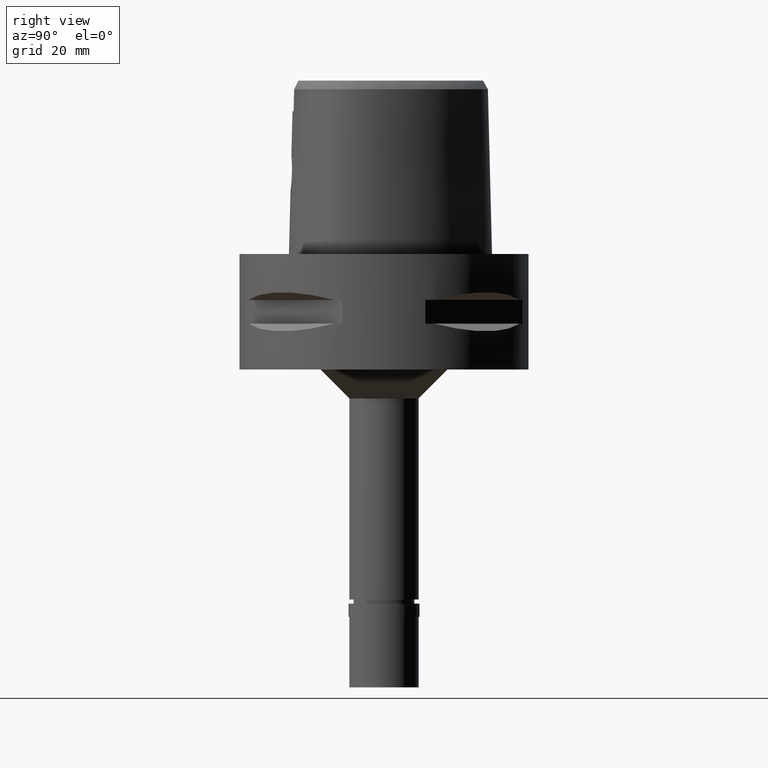
[diagram: clean part render]
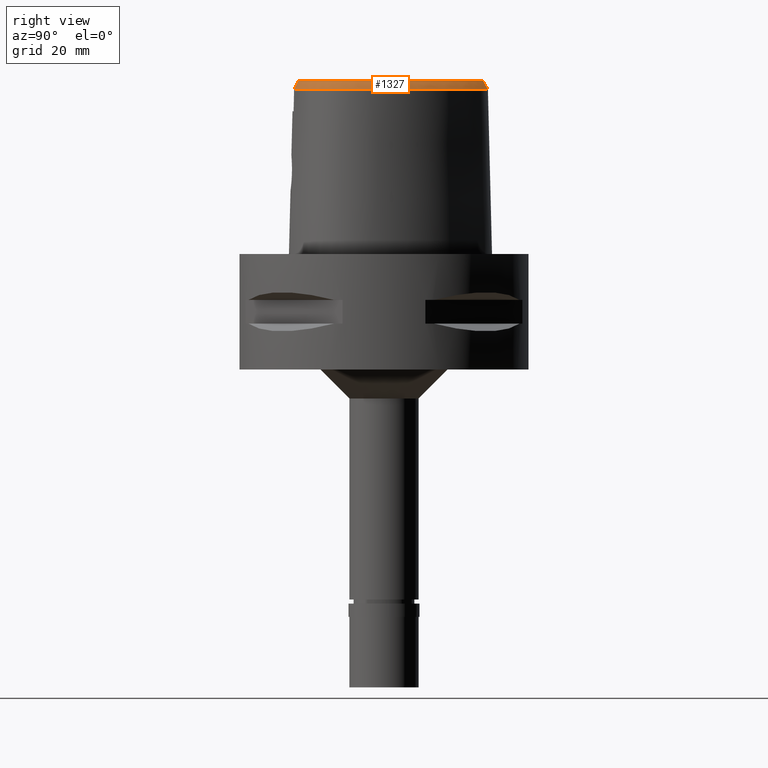
[diagram: same view with one face highlighted and labeled with its STEP entity id]
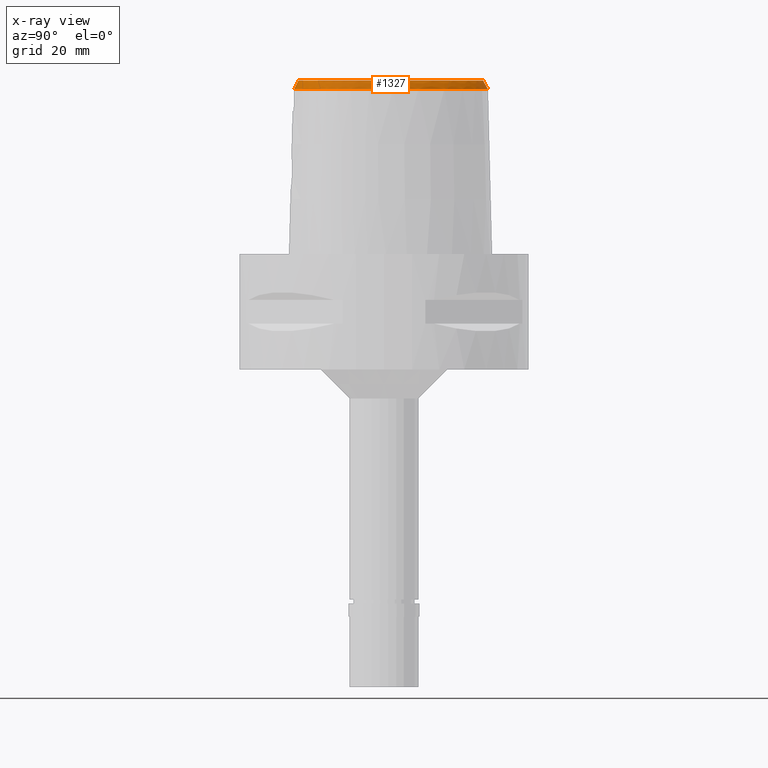
[diagram: x-ray of the same camera — body ghosted, the highlighted face saturated]
A machine part, right view. The second image highlights one B-rep face of the part: STEP entity #1327.
The next image is the same camera in x-ray: the body ghosted, the highlighted face saturated — about 0% of this face is hidden behind the body in this view.
In plain terms, the highlighted face is a freeform B-spline surface patch.
Its self-contained STEP definition (entity closure, byte-faithful):
#5 = CARTESIAN_POINT ( 'NONE',  ( 6.724797374536999328, -14.30101157136999923, 29.55000047030999966 ) ) ;
#13 = CARTESIAN_POINT ( 'NONE',  ( 14.53390620212999984, 5.620927143257999248, 28.97066037476000133 ) ) ;
#29 = CARTESIAN_POINT ( 'NONE',  ( 11.36765809995352505, -12.04801986072696707, 30.00000000000312639 ) ) ;
#36 = CARTESIAN_POINT ( 'NONE',  ( 16.37770331436999882, -3.537310348423000406, 29.54999944082999619 ) ) ;
#51 = CARTESIAN_POINT ( 'NONE',  ( 15.29323375805460117, -7.718923543002548016, 30.00000000000013856 ) ) ;
#53 = CARTESIAN_POINT ( 'NONE',  ( 4.199632981418999655, -14.84672476410000108, 29.54999921687999986 ) ) ;
#59 = CARTESIAN_POINT ( 'NONE',  ( 16.26461171300000075, 1.901595575491999979, 28.39132359343999923 ) ) ;
#72 = CARTESIAN_POINT ( 'NONE',  ( 9.420872132873729043, 12.20574557692420647, 30.00000000000720490 ) ) ;
#74 = CARTESIAN_POINT ( 'NONE',  ( 7.760784874898999597, -13.64550363543999900, 30.12933874967000136 ) ) ;
#82 = CARTESIAN_POINT ( 'NONE',  ( 14.82827226436999979, 5.757998883251000066, 28.39132109874000065 ) ) ;
#96 = CARTESIAN_POINT ( 'NONE',  ( 9.755668685252119943, -12.92551394023250921, 30.00000000000319744 ) ) ;
#107 = CARTESIAN_POINT ( 'NONE',  ( 13.31973456618999840, 6.602894440045999680, 30.12933897699000241 ) ) ;
#122 = CARTESIAN_POINT ( 'NONE',  ( 14.55828366953115705, 4.114142377745225509, 30.00000000000266454 ) ) ;
#125 = CARTESIAN_POINT ( 'NONE',  ( 16.47905536661118830, -6.962316254603424959, 28.52071728562179231 ) ) ;
#154 = CARTESIAN_POINT ( 'NONE',  ( 6.007749726799000101, 15.03327722248999976, 30.12933869948999899 ) ) ;
#178 = CARTESIAN_POINT ( 'NONE',  ( 1.241506488402000175, 17.64997603565999995, 28.97065956571999834 ) ) ;
#196 = CARTESIAN_POINT ( 'NONE',  ( 16.99625257117060784, -3.273868232427134206, 28.52071728562179231 ) ) ;
#202 = CARTESIAN_POINT ( 'NONE',  ( 1.892837094361999872, 17.53646441981000237, 28.97065995039000086 ) ) ;
#225 = CARTESIAN_POINT ( 'NONE',  ( 0.03835254134753000171, 17.08612171390999990, 30.12933898434999946 ) ) ;
#284 = CARTESIAN_POINT ( 'NONE',  ( 15.22665195903000068, -7.690191382263999564, 30.12933897638999881 ) ) ;
#306 = CARTESIAN_POINT ( 'NONE',  ( 14.02625041368999881, -9.658682705792001499, 30.12933896442000048 ) ) ;
#337 = CARTESIAN_POINT ( 'NONE',  ( 15.64143006704999905, -6.514574797256999616, 30.12933901372000278 ) ) ;
#350 = CARTESIAN_POINT ( 'NONE',  ( 2.674237079574083964, -15.00654560861780595, 29.59847386630686117 ) ) ;
#356 = CARTESIAN_POINT ( 'NONE',  ( 3.160207219436999893, -14.98522073072999916, 29.54999954832999975 ) ) ;
#361 = CARTESIAN_POINT ( 'NONE',  ( 16.01340400865999669, -4.368326340071999603, 30.12933892659999913 ) ) ;
#385 = CARTESIAN_POINT ( 'NONE',  ( 14.38851892047999925, -9.182527562120000653, 30.12933901626000122 ) ) ;
#399 = CARTESIAN_POINT ( 'NONE',  ( 2.538962679605123895, -14.79292722369513235, 30.00000000000949285 ) ) ;
#411 = CARTESIAN_POINT ( 'NONE',  ( 13.45870515836000081, 8.335003919024998709, 28.39132012102000147 ) ) ;
#427 = CARTESIAN_POINT ( 'NONE',  ( 15.68929135223632798, 0.4919393172820468174, 30.00000000000170175 ) ) ;
#429 = CARTESIAN_POINT ( 'NONE',  ( 2.403101206467000317, -15.05959379865000081, 29.54999962652000178 ) ) ;
#435 = CARTESIAN_POINT ( 'NONE',  ( 8.507108140543000019, 13.02166432272999863, 30.12933879929000014 ) ) ;
#449 = CARTESIAN_POINT ( 'NONE',  ( 15.51702143705464998, -7.148634146068665984, 30.00000000000195044 ) ) ;
#456 = CARTESIAN_POINT ( 'NONE',  ( 12.67396354151000004, 9.565731199256999773, 28.39132136682000151 ) ) ;
#467 = CARTESIAN_POINT ( 'NONE',  ( 14.01089202938309697, 5.377385268370920457, 30.00000000000238032 ) ) ;
#471 = CARTESIAN_POINT ( 'NONE',  ( 4.422474504765948389, 17.08283549833199899, 28.52071728562179231 ) ) ;
#476 = CARTESIAN_POINT ( 'NONE',  ( 16.47123648728999612, -0.5205807403898999874, 28.97066042555999843 ) ) ;
#492 = CARTESIAN_POINT ( 'NONE',  ( 10.27891984617708232, 11.24296481357245803, 30.00000000000057909 ) ) ;
#499 = CARTESIAN_POINT ( 'NONE',  ( 16.29145644433000228, -1.627790058883999968, 29.54999922132000023 ) ) ;
#525 = CARTESIAN_POINT ( 'NONE',  ( 2.393183334578000032, 16.74578086432000035, 30.12933902132000341 ) ) ;
#547 = CARTESIAN_POINT ( 'NONE',  ( -0.4671854377900999666, 17.06819343881000250, 30.12933903347000353 ) ) ;
#570 = CARTESIAN_POINT ( 'NONE',  ( 0.6295828025445684428, 17.98202997637643819, 28.52071728562185626 ) ) ;
#576 = CARTESIAN_POINT ( 'NONE',  ( 6.819491570620999532, 14.45715801660000110, 30.12933905566000092 ) ) ;
#601 = CARTESIAN_POINT ( 'NONE',  ( 0.5868692911755000186, 17.39174944715999871, 29.54999931429000171 ) ) ;
#621 = CARTESIAN_POINT ( 'NONE',  ( -0.3198455499292000015, 17.40094521115000248, 29.54999937967999912 ) ) ;
#651 = CARTESIAN_POINT ( 'NONE',  ( 14.32352005684000140, -10.79805995745999958, 28.39132004141000110 ) ) ;
#673 = CARTESIAN_POINT ( 'NONE',  ( 13.14228076360999964, -10.60178471445999904, 30.12933901748000309 ) ) ;
#695 = CARTESIAN_POINT ( 'NONE',  ( 10.57035672766000012, -12.43101058403000003, 30.12933901251000179 ) ) ;
#712 = CARTESIAN_POINT ( 'NONE',  ( 9.030405587927999633, -13.87003725487000061, 28.97065974311000502 ) ) ;
#720 = CARTESIAN_POINT ( 'NONE',  ( 15.92803471540999993, -5.141304106878999747, 30.12933899952999894 ) ) ;
#738 = CARTESIAN_POINT ( 'NONE',  ( 2.374155160117999763, -14.73630758192000023, 30.12933893377000061 ) ) ;
#744 = CARTESIAN_POINT ( 'NONE',  ( 14.78057008725999921, -10.27557292577000148, 28.39132063061999744 ) ) ;
#757 = CARTESIAN_POINT ( 'NONE',  ( 1.774127352510728839, 16.97169788998495576, 30.00000000000059686 ) ) ;
#765 = CARTESIAN_POINT ( 'NONE',  ( 13.89320609375999993, 6.907670678806000275, 28.97065997526999936 ) ) ;
#788 = CARTESIAN_POINT ( 'NONE',  ( 16.15077218540999837, -0.5731144805036000323, 29.54999967298000030 ) ) ;
#803 = CARTESIAN_POINT ( 'NONE',  ( 15.90185233182582536, -0.6139199331565691198, 29.99999999999724309 ) ) ;
#805 = CARTESIAN_POINT ( 'NONE',  ( 6.896448110035999335, -14.92737639627000057, 28.39132402844999703 ) ) ;
#810 = CARTESIAN_POINT ( 'NONE',  ( 14.23954013989999901, 5.483855403264000117, 29.54999965077000113 ) ) ;
#826 = CARTESIAN_POINT ( 'NONE',  ( 14.44767169632926418, -9.224476417584888566, 30.00000000000139622 ) ) ;
#834 = CARTESIAN_POINT ( 'NONE',  ( 17.01357385974000280, -2.586583160558999950, 28.39132008429000109 ) ) ;
#846 = CARTESIAN_POINT ( 'NONE',  ( 2.412811123804935232, 16.81558681049257231, 30.00000000000935785 ) ) ;
#854 = CARTESIAN_POINT ( 'NONE',  ( 14.79226130284999918, 4.208331689905000061, 29.54999932535999818 ) ) ;
#881 = CARTESIAN_POINT ( 'NONE',  ( 7.407196740685999536, 15.23417098104999923, 28.39131949585000214 ) ) ;
#889 = VECTOR ( 'NONE', #2634, 1000.000000000000000 ) ;
#900 = CARTESIAN_POINT ( 'NONE',  ( 13.75951381385792160, 7.944084035686178602, 28.52071728562234298 ) ) ;
#907 = CARTESIAN_POINT ( 'NONE',  ( 3.162349971116000358, 16.84318482678999729, 29.54999909243000289 ) ) ;
#933 = CARTESIAN_POINT ( 'NONE',  ( 7.211295017331000423, 14.97516665956999837, 28.97065934911999818 ) ) ;
#962 = CARTESIAN_POINT ( 'NONE',  ( 1.151426994307000129, 17.00661540820000184, 30.12933902845000134 ) ) ;
#987 = CARTESIAN_POINT ( 'NONE',  ( -0.3076559682576999744, 17.07655532861999959, 30.12933900470000381 ) ) ;
#1013 = CARTESIAN_POINT ( 'NONE',  ( 14.70257957386000136, -8.704822545458000604, 30.12933899580000130 ) ) ;
#1045 = CARTESIAN_POINT ( 'NONE',  ( 12.60922746568000008, -11.06871522052000145, 30.12933901813000404 ) ) ;
#1068 = CARTESIAN_POINT ( 'NONE',  ( 16.58011398326999597, -6.776030233841999539, 28.39132001757000268 ) ) ;
#1083 = B_SPLINE_CURVE_WITH_KNOTS ( 'NONE', 3,
 ( #3217, #3706, #350, #2214 ),
 .UNSPECIFIED., .F., .F.,
 ( 4, 4 ),
 ( 0.0000000000000000000, 1.000000000000000000 ),
 .UNSPECIFIED. ) ;
#1087 = CARTESIAN_POINT ( 'NONE',  ( 8.789335771373000483, -13.26694451458999957, 30.12933900616000216 ) ) ;
#1094 = CARTESIAN_POINT ( 'NONE',  ( 14.91843713128000104, -9.558325013954000582, 28.97065966269000015 ) ) ;
#1112 = FACE_OUTER_BOUND ( 'NONE', #1286, .T. ) ;
#1120 = CARTESIAN_POINT ( 'NONE',  ( 13.61269620592999985, -10.13155120238000073, 30.12933901179999907 ) ) ;
#1126 = ORIENTED_EDGE ( 'NONE', *, *, #4210, .T. ) ;
#1133 = CARTESIAN_POINT ( 'NONE',  ( 6.863227115065147821, 14.51498137220580453, 29.99999999999972999 ) ) ;
#1140 = CARTESIAN_POINT ( 'NONE',  ( 16.98482879767000142, -4.443527614016000271, 28.39132110107000173 ) ) ;
#1162 = CARTESIAN_POINT ( 'NONE',  ( 11.83823375857000038, 10.73493448299999997, 28.39132084647000198 ) ) ;
#1172 = CARTESIAN_POINT ( 'NONE',  ( 7.700998872105635051, 13.84384558891570904, 30.00000000000877165 ) ) ;
#1175 = CARTESIAN_POINT ( 'NONE',  ( 5.636973625527000209, -15.23653987307000079, 28.39132122791999890 ) ) ;
#1183 = CARTESIAN_POINT ( 'NONE',  ( 16.61443313433000313, -1.593900505674999968, 28.97065939241999999 ) ) ;
#1208 = CARTESIAN_POINT ( 'NONE',  ( 11.06083212561999929, 10.14789198257000002, 30.12933894706999993 ) ) ;
#1221 = CARTESIAN_POINT ( 'NONE',  ( 3.130495111450138701, -14.73481892792065473, 30.00000000000745004 ) ) ;
#1232 = CARTESIAN_POINT ( 'NONE',  ( 15.56634402453999932, 3.055458567396000191, 28.97065974560999990 ) ) ;
#1236 = EDGE_CURVE ( 'NONE', #3647, #4383, #1083, .T. ) ;
#1249 = CARTESIAN_POINT ( 'NONE',  ( 14.26907046692714154, -10.79012245165998962, 28.52071728562179231 ) ) ;
#1265 = EDGE_CURVE ( 'NONE', #4285, #4311, #4846, .T. ) ;
#1281 = CARTESIAN_POINT ( 'NONE',  ( 0.04120630076286999760, 17.73568265410000322, 28.97065991665000340 ) ) ;
#1286 = EDGE_LOOP ( 'NONE', ( #3407, #1810, #1126, #1379 ) ) ;
#1305 = CARTESIAN_POINT ( 'NONE',  ( 7.864468850303000913, 14.03594638061000133, 29.54999952658999973 ) ) ;
#1322 = CARTESIAN_POINT ( 'NONE',  ( 8.702202469521875372, -14.36510984285812675, 28.52071728562179231 ) ) ;
#1327 = ADVANCED_FACE ( 'NONE', ( #1112 ), #3470, .F. ) ;
#1329 = CARTESIAN_POINT ( 'NONE',  ( 7.015393293975999534, 14.71616233808000018, 29.54999920239000133 ) ) ;
#1356 = CARTESIAN_POINT ( 'NONE',  ( -0.3442247132722999758, 18.04972497620000027, 28.39132012965000129 ) ) ;
#1379 = ORIENTED_EDGE ( 'NONE', *, *, #1236, .F. ) ;
#1387 = CARTESIAN_POINT ( 'NONE',  ( 12.81490438393000098, -11.32008303365000046, 29.54999933299999881 ) ) ;
#1412 = CARTESIAN_POINT ( 'NONE',  ( 13.58556199696999833, -11.07663249340999911, 28.97065965302000023 ) ) ;
#1437 = CARTESIAN_POINT ( 'NONE',  ( 12.38543088049999952, -12.05906003219000056, 28.97066025376999931 ) ) ;
#1457 = CARTESIAN_POINT ( 'NONE',  ( 14.65347802587999837, -9.370426288037000617, 29.54999933947999935 ) ) ;
#1480 = CARTESIAN_POINT ( 'NONE',  ( 15.18339623668000016, -9.746223739870000458, 28.39131998589999739 ) ) ;
#1499 = CARTESIAN_POINT ( 'NONE',  ( 7.967110124136000948, -14.26133184941999943, 28.97066178440000073 ) ) ;
#1508 = CARTESIAN_POINT ( 'NONE',  ( 17.02716357622000132, -3.547219676076999839, 28.39132034822999984 ) ) ;
#1520 = CARTESIAN_POINT ( 'NONE',  ( 15.87349190488159678, -5.869792298898159011, 30.00000000000084910 ) ) ;
#1522 = CARTESIAN_POINT ( 'NONE',  ( 2.460993299162999914, -15.70616623210999840, 28.39132101202000058 ) ) ;
#1529 = CARTESIAN_POINT ( 'NONE',  ( 13.60647032996999961, 6.755282559425999978, 29.54999947613000089 ) ) ;
#1545 = CARTESIAN_POINT ( 'NONE',  ( 13.19176257967279753, -10.65479018522470511, 30.00000000000483169 ) ) ;
#1548 = CARTESIAN_POINT ( 'NONE',  ( 4.250950817486999433, -15.16736395997999942, 28.97065938225999915 ) ) ;
#1554 = CARTESIAN_POINT ( 'NONE',  ( 16.66102053467000133, -4.418460522700999427, 28.97066037624999879 ) ) ;
#1567 = CARTESIAN_POINT ( 'NONE',  ( 14.08238499151729251, -9.704590128437788010, 29.99999999999631584 ) ) ;
#1569 = CARTESIAN_POINT ( 'NONE',  ( 7.863947499517999873, -13.95341774243000010, 29.55000026703999794 ) ) ;
#1579 = CARTESIAN_POINT ( 'NONE',  ( 10.22348442182999939, 11.19624856240000099, 30.12933904753000292 ) ) ;
#1592 = CARTESIAN_POINT ( 'NONE',  ( 6.658132732488531325, -14.05774790739147306, 30.00000000000367351 ) ) ;
#1602 = CARTESIAN_POINT ( 'NONE',  ( 9.841260471396999776, 12.60090599918999921, 28.97066088540999829 ) ) ;
#1617 = CARTESIAN_POINT ( 'NONE',  ( 11.11868440496114729, 10.19157821280286491, 29.99999999999988631 ) ) ;
#1621 = CARTESIAN_POINT ( 'NONE',  ( 16.01658383235639604, -8.155509186612434291, 28.52071728562234298 ) ) ;
#1626 = CARTESIAN_POINT ( 'NONE',  ( 4.759444592024999920, 16.51289654875999702, 28.97066299361000219 ) ) ;
#1650 = CARTESIAN_POINT ( 'NONE',  ( 3.872136491423000315, 16.56702530321000211, 29.54999963857000367 ) ) ;
#1676 = CARTESIAN_POINT ( 'NONE',  ( 0.5641109314629000338, 17.06772029185000150, 30.12933902351000270 ) ) ;
#1696 = CARTESIAN_POINT ( 'NONE',  ( 13.06460231238621184, -11.91950040983623360, 28.52071728562234298 ) ) ;
#1704 = CARTESIAN_POINT ( 'NONE',  ( 6.368470492836999952, 15.57341093003999966, 28.97066218371999824 ) ) ;
#1727 = CARTESIAN_POINT ( 'NONE',  ( 4.127639558566000844, 17.16423294489000284, 28.39132105510000059 ) ) ;
#1791 = CARTESIAN_POINT ( 'NONE',  ( 15.75496200118000090, -7.232532537091000080, 29.54999944772000120 ) ) ;
#1810 = ORIENTED_EDGE ( 'NONE', *, *, #1265, .T. ) ;
#1814 = CARTESIAN_POINT ( 'NONE',  ( 15.55542924622999834, -8.512467129873000360, 28.97065951424999852 ) ) ;
#1842 = CARTESIAN_POINT ( 'NONE',  ( 15.80250644440000052, -5.854993616961000846, 30.12933902195000258 ) ) ;
#1865 = CARTESIAN_POINT ( 'NONE',  ( 12.00704430855999938, -11.53108957683000035, 30.12933894198999951 ) ) ;
#1880 = CARTESIAN_POINT ( 'NONE',  ( 5.431309447300999516, -14.28432403475999912, 30.12933891640999917 ) ) ;
#1885 = CARTESIAN_POINT ( 'NONE',  ( 15.44863265189999879, -7.124520102885000483, 30.12933898515000308 ) ) ;
#1900 = CARTESIAN_POINT ( 'NONE',  ( 1.969080072003999815, -15.41907090439000072, 28.97066031253999796 ) ) ;
#1909 = CARTESIAN_POINT ( 'NONE',  ( 12.40483953770999825, 9.384039176921000092, 28.97066054628999865 ) ) ;
#1924 = CARTESIAN_POINT ( 'NONE',  ( 13.38374903490313450, 6.636915464740235748, 30.00000000000613909 ) ) ;
#1926 = CARTESIAN_POINT ( 'NONE',  ( 2.432047252814999894, -15.38288001538000138, 28.97066031926999941 ) ) ;
#1934 = CARTESIAN_POINT ( 'NONE',  ( 15.95204074033000019, 1.813576384792000118, 28.97066197103000107 ) ) ;
#1955 = CARTESIAN_POINT ( 'NONE',  ( 15.63946976766000141, 1.725557194090999946, 29.55000034861999936 ) ) ;
#1965 = CARTESIAN_POINT ( 'NONE',  ( 3.772905803807103275, 16.33508552419380422, 30.00000000000476419 ) ) ;
#1977 = CARTESIAN_POINT ( 'NONE',  ( 16.68914984301000004, -2.601316584336999860, 28.97065972564000091 ) ) ;
#1988 = CARTESIAN_POINT ( 'NONE',  ( 11.92667412982212305, 9.061218325781851490, 29.99999999999724309 ) ) ;
#1998 = CARTESIAN_POINT ( 'NONE',  ( 16.56944937695000064, 0.6878765688521000232, 28.39132404110999985 ) ) ;
#2023 = CARTESIAN_POINT ( 'NONE',  ( 8.285377762848000316, 14.53057503490000002, 28.39132065480000122 ) ) ;
#2041 = CARTESIAN_POINT ( 'NONE',  ( -0.5035564541229999858, 17.71626475828999858, 28.97065952574000036 ) ) ;
#2062 = CARTESIAN_POINT ( 'NONE',  ( 2.406543924163999648, -14.80491841401999942, 30.00000000000000000 ) ) ;
#2065 = CARTESIAN_POINT ( 'NONE',  ( 15.84228676733594909, 3.460033425849148081, 28.52071728562234298 ) ) ;
#2071 = CARTESIAN_POINT ( 'NONE',  ( 5.222076460478999316, 15.52343050146000003, 30.12933849664999997 ) ) ;
#2099 = CARTESIAN_POINT ( 'NONE',  ( 6.548830875855999878, 15.84347778381000182, 28.39132392584000186 ) ) ;
#2156 = CARTESIAN_POINT ( 'NONE',  ( 15.26678999447999985, -8.363462368166000971, 29.54999927457999931 ) ) ;
#2177 = EDGE_CURVE ( 'NONE', #4285, #3647, #4531, .T. ) ;
#2180 = CARTESIAN_POINT ( 'NONE',  ( 13.36392138028999987, -10.83920860393000041, 29.54999933525000344 ) ) ;
#2202 = CARTESIAN_POINT ( 'NONE',  ( 14.97815074272999958, -8.214457606459999894, 30.12933903492000098 ) ) ;
#2214 = CARTESIAN_POINT ( 'NONE',  ( 2.406543924163999648, -14.80491841401999942, 30.00000000000000000 ) ) ;
#2228 = CARTESIAN_POINT ( 'NONE',  ( 16.57119110858999989, -5.232388750938999245, 28.97065979582000139 ) ) ;
#2253 = CARTESIAN_POINT ( 'NONE',  ( 11.67386422076999963, -12.53710929704999977, 28.97066013871000223 ) ) ;
#2265 = CARTESIAN_POINT ( 'NONE',  ( 15.71128456932076922, -6.534031654962817015, 30.00000000000648015 ) ) ;
#2272 = CARTESIAN_POINT ( 'NONE',  ( 12.62377225457000129, 7.833165515760999398, 30.12933900540000209 ) ) ;
#2285 = CARTESIAN_POINT ( 'NONE',  ( 15.04259016984194020, -8.247723288182342571, 30.00000000000673950 ) ) ;
#2288 = CARTESIAN_POINT ( 'NONE',  ( 2.132884600484000082, -15.40723653104999968, 28.97066032564999816 ) ) ;
#2297 = CARTESIAN_POINT ( 'NONE',  ( 10.72010086057999878, 11.61475457299999903, 28.97065941382999910 ) ) ;
#2310 = CARTESIAN_POINT ( 'NONE',  ( 2.107538023761999835, -15.08365740244000008, 29.54999962931000113 ) ) ;
#2319 = CARTESIAN_POINT ( 'NONE',  ( 14.17994185754000114, 7.060058798185998796, 28.39132047440999784 ) ) ;
#2333 = CARTESIAN_POINT ( 'NONE',  ( 14.76450668991109616, -8.742560395149464370, 30.00000000000025224 ) ) ;
#2343 = CARTESIAN_POINT ( 'NONE',  ( 9.604654914093998741, 12.37849937330000039, 29.54999987401999917 ) ) ;
#2368 = CARTESIAN_POINT ( 'NONE',  ( 15.87365493675999950, 3.160362299181000090, 28.39132011549000012 ) ) ;
#2394 = CARTESIAN_POINT ( 'NONE',  ( 5.713535670771999975, 16.36468846090999918, 28.39132644872999833 ) ) ;
#2418 = CARTESIAN_POINT ( 'NONE',  ( 1.959650043376000017, 17.85432980114999779, 28.39132043552999818 ) ) ;
#2442 = CARTESIAN_POINT ( 'NONE',  ( 7.654014394030999924, 13.78863205346999976, 30.12933896248999943 ) ) ;
#2470 = CARTESIAN_POINT ( 'NONE',  ( 1.286546235449000042, 17.97165634939999990, 28.39131983434999640 ) ) ;
#2520 = CARTESIAN_POINT ( 'NONE',  ( 15.53473764423000070, -9.211932486643000573, 28.39132024035999891 ) ) ;
#2548 = CARTESIAN_POINT ( 'NONE',  ( 9.862798259080001628, -13.15388578490999905, 29.54999930386000173 ) ) ;
#2574 = CARTESIAN_POINT ( 'NONE',  ( 16.12046690924000103, -5.921280371401000053, 29.54999931968000126 ) ) ;
#2587 = CARTESIAN_POINT ( 'NONE',  ( -2.866356467587000151E-11, 17.98202997909999823, 28.52071728569000086 ) ) ;
#2594 = CARTESIAN_POINT ( 'NONE',  ( 8.909870679650000014, -13.56849088473000009, 29.54999937463000137 ) ) ;
#2600 = CARTESIAN_POINT ( 'NONE',  ( 13.80720261365000034, -11.31405638288000048, 28.39131997078999703 ) ) ;
#2625 = CARTESIAN_POINT ( 'NONE',  ( 15.84406849798000039, -8.661471891578999660, 28.39131975391000040 ) ) ;
#2634 = DIRECTION ( 'NONE',  ( -2.026170529251034668E-11, -0.4887572537803078765, 0.8724198226067148010 ) ) ;
#2639 = CARTESIAN_POINT ( 'NONE',  ( 0.1912597614439517923, 17.15328888648393502, 30.00000000000339284 ) ) ;
#2641 = CARTESIAN_POINT ( 'NONE',  ( 2.082191447041000121, -14.76007827383000048, 30.12933893295999965 ) ) ;
#2648 = CARTESIAN_POINT ( 'NONE',  ( 15.25903311233000181, 2.950554835609999760, 29.54999937572999968 ) ) ;
#2659 = CARTESIAN_POINT ( 'NONE',  ( 15.39668103801774457, 1.657188505494163966, 29.99999999999893774 ) ) ;
#2667 = CARTESIAN_POINT ( 'NONE',  ( 15.09348869727999976, 4.329592857830999897, 28.97065963038999925 ) ) ;
#2683 = CARTESIAN_POINT ( 'NONE',  ( 16.12546998862585923, -3.533461825553543267, 30.00000000000946798 ) ) ;
#2694 = CARTESIAN_POINT ( 'NONE',  ( 15.39471609169999944, 4.450854025756999732, 28.39131993542000032 ) ) ;
#2705 = CARTESIAN_POINT ( 'NONE',  ( 4.499552315895293475, 15.99769543814628925, 29.99999999999950973 ) ) ;
#2715 = CARTESIAN_POINT ( 'NONE',  ( 12.13571553390000091, 9.202347154585000411, 29.54999972575999934 ) ) ;
#2737 = CARTESIAN_POINT ( 'NONE',  ( 15.96847975433000144, -1.661679612093000191, 30.12933905022000047 ) ) ;
#2762 = CARTESIAN_POINT ( 'NONE',  ( 9.179118065587999808, 13.72697123116999940, 28.39132268463000131 ) ) ;
#2785 = CARTESIAN_POINT ( 'NONE',  ( -0.3320351316007000286, 17.72533509367999827, 28.97065975466000154 ) ) ;
#2809 = CARTESIAN_POINT ( 'NONE',  ( 3.054098211332000101, 16.53696171532999770, 30.12933908727000087 ) ) ;
#2826 = CARTESIAN_POINT ( 'NONE',  ( 5.902447799198486500, -15.16907841529239498, 28.52071728562220088 ) ) ;
#2833 = CARTESIAN_POINT ( 'NONE',  ( 2.481100788997999906, 17.05845800894999797, 29.54999932191000411 ) ) ;
#2851 = B_SPLINE_CURVE_WITH_KNOTS ( 'NONE', 3,
 ( #3059, #2639, #3848, #3019, #757, #846, #3482, #1965, #2705, #3823, #3434, #1133, #1172, #4194, #72, #492, #1617, #1988, #3108, #1924, #467, #122, #4147, #2659, #427, #803, #4130, #3413, #2683, #4218, #3457, #1520, #2265, #449, #51, #2285, #2333, #826, #1567, #4171, #1545, #4563, #3040, #29, #3392, #96, #3801, #3777, #1592, #3754, #4583, #1221, #399, #4515 ),
 .UNSPECIFIED., .F., .F.,
 ( 4, 1, 1, 1, 1, 1, 1, 1, 1, 1, 1, 1, 1, 1, 1, 1, 1, 1, 1, 1, 1, 1, 1, 1, 1, 1, 1, 1, 1, 1, 1, 1, 1, 1, 1, 1, 1, 1, 1, 1, 1, 1, 1, 1, 1, 1, 1, 1, 1, 1, 1, 4 ),
 ( 0.0000000000000000000, 0.01988587058640001182, 0.03977174117009996124, 0.05965761175399997285, 0.07954348233780006439, 0.09942935292160004490, 0.1193152235055000565, 0.1392010940893000370, 0.1590869646731999376, 0.1789728352568999981, 0.1988587058408000097, 0.2187445764247000213, 0.2386304470083999707, 0.2585163175922999823, 0.2784021881761000738, 0.2982880587598999433, 0.3181739293438000660, 0.3380597999276000465, 0.3579456705113999160, 0.3778315410952000075, 0.3977174116791000191, 0.4176032822630000307, 0.4374891528466999802, 0.4573750234305999918, 0.4772608940143999723, 0.4971467645981999528, 0.5170326351820999644, 0.5369185057659000559, 0.5568043763497000365, 0.5766902469335999371, 0.5965761175174000286, 0.6164619881012000091, 0.6363478586849999896, 0.6562337292689000012, 0.6761195998528000128, 0.6960054704364999623, 0.7158913410203999739, 0.7357772116042000654, 0.7556630821880000459, 0.7755489527718999465, 0.7954348233557000381, 0.8153206939395000186, 0.8352065645232999991, 0.8550924351072000107, 0.8749783056909999912, 0.8948641762747999717, 0.9147500468586799993, 0.9346359174424899718, 0.9545217880263200394, 0.9744076586101599879, 0.9942935291939859477, 1.000000000000000000 ),
 .UNSPECIFIED. ) ;
#2860 = CARTESIAN_POINT ( 'NONE',  ( -0.4853709459566000195, 17.39222909855000054, 29.54999927960000150 ) ) ;
#2889 = CARTESIAN_POINT ( 'NONE',  ( 13.22625822044999921, -11.82281865989999936, 28.39131996273999903 ) ) ;
#2914 = CARTESIAN_POINT ( 'NONE',  ( 10.00071897368999885, -13.44789617709999874, 28.97065958121999785 ) ) ;
#2939 = CARTESIAN_POINT ( 'NONE',  ( 14.97996559731000055, -8.873859192519999439, 29.54999941065999991 ) ) ;
#2960 = CARTESIAN_POINT ( 'NONE',  ( 16.75638783892999939, -6.053853880281999444, 28.39131991513000131 ) ) ;
#2980 = CARTESIAN_POINT ( 'NONE',  ( 16.06129135045000211, -7.340544971296999677, 28.97065991030000021 ) ) ;
#3006 = CARTESIAN_POINT ( 'NONE',  ( 15.83030788352999707, -0.6256482206173000771, 30.12933892040000217 ) ) ;
#3019 = CARTESIAN_POINT ( 'NONE',  ( 1.161482229273773203, 17.07843133415003223, 30.00000000000436273 ) ) ;
#3021 = CARTESIAN_POINT ( 'NONE',  ( 3.121955268833999764, -14.66284853834999957, 30.12933895623999803 ) ) ;
#3028 = CARTESIAN_POINT ( 'NONE',  ( 16.25247492516999870, 0.6173129869091000810, 28.97066225748000079 ) ) ;
#3040 = CARTESIAN_POINT ( 'NONE',  ( 12.04928217775975341, -11.59002493206867612, 30.00000000000095213 ) ) ;
#3042 = CARTESIAN_POINT ( 'NONE',  ( 5.568418899452000304, -14.91913459364000083, 28.97066045741000195 ) ) ;
#3049 = CARTESIAN_POINT ( 'NONE',  ( 16.04030180952999984, -2.630783431893999769, 30.12933900835000145 ) ) ;
#3059 = CARTESIAN_POINT ( 'NONE',  ( -6.301949014319000032E-11, 17.15328888647999861, 30.00000000000000000 ) ) ;
#3063 = CARTESIAN_POINT ( 'NONE',  ( 8.070272748755000336, -14.56924595640999875, 28.39132330177000085 ) ) ;
#3071 = CARTESIAN_POINT ( 'NONE',  ( 10.96840907994999981, 11.82400757829999982, 28.39131959697000340 ) ) ;
#3096 = CARTESIAN_POINT ( 'NONE',  ( 11.86659153009999912, 9.020655132247998864, 30.12933890523000002 ) ) ;
#3108 = CARTESIAN_POINT ( 'NONE',  ( 12.68590586676461740, 7.870511070824518285, 30.00000000000486011 ) ) ;
#3113 = CARTESIAN_POINT ( 'NONE',  ( 7.523733068099214272, 15.26501041873908093, 28.52071728562234298 ) ) ;
#3119 = CARTESIAN_POINT ( 'NONE',  ( -0.5217419622894999831, 18.04030041802000284, 28.39131977187000189 ) ) ;
#3138 = CARTESIAN_POINT ( 'NONE',  ( 1.893775678555797093, 17.84807068955401732, 28.52071728562234298 ) ) ;
#3149 = CARTESIAN_POINT ( 'NONE',  ( 3.378853490683999983, 17.45563104971000001, 28.39131910276000070 ) ) ;
#3173 = CARTESIAN_POINT ( 'NONE',  ( 0.6323860106008000193, 18.03980775778000023, 28.39131989586000060 ) ) ;
#3193 = CARTESIAN_POINT ( 'NONE',  ( 11.33338046474402994, -13.08225241901731906, 28.52071728562234298 ) ) ;
#3200 = CARTESIAN_POINT ( 'NONE',  ( 8.955114757240000500, 13.49186892836000062, 28.97066138951999648 ) ) ;
#3217 = CARTESIAN_POINT ( 'NONE',  ( 3.168920890822999770, -15.55911073834000113, 28.52071374672999582 ) ) ;
#3224 = CARTESIAN_POINT ( 'NONE',  ( 4.613170418368000014, 16.22292788234000227, 29.55000079566999815 ) ) ;
#3277 = CARTESIAN_POINT ( 'NONE',  ( 16.36762069971999978, -7.448557405503000162, 28.39132037288000276 ) ) ;
#3300 = CARTESIAN_POINT ( 'NONE',  ( 14.27769030487999835, -9.864312779119998709, 29.54999951981999828 ) ) ;
#3317 = CARTESIAN_POINT ( 'NONE',  ( 3.168920890822999770, -15.55911073834000113, 28.52071374672999582 ) ) ;
#3327 = CARTESIAN_POINT ( 'NONE',  ( 16.43842737408000332, -5.987567125841999349, 28.97065961740999995 ) ) ;
#3348 = CARTESIAN_POINT ( 'NONE',  ( 9.150940496205000940, -14.17158362500999935, 28.39132011158000068 ) ) ;
#3352 = CARTESIAN_POINT ( 'NONE',  ( 12.57462416645999959, -12.32304525985999888, 28.39132090964999833 ) ) ;
#3374 = CARTESIAN_POINT ( 'NONE',  ( 11.84620503811999903, -12.81238162990999996, 28.39132072984000033 ) ) ;
#3392 = CARTESIAN_POINT ( 'NONE',  ( 10.60500548643904395, -12.49469941439557097, 29.99999999999549871 ) ) ;
#3394 = CARTESIAN_POINT ( 'NONE',  ( 1.945696665590999963, -15.09534996979999910, 29.54999962357999976 ) ) ;
#3400 = CARTESIAN_POINT ( 'NONE',  ( 16.93740982431999953, -1.560010952466000189, 28.39131956351999975 ) ) ;
#3407 = ORIENTED_EDGE ( 'NONE', *, *, #2177, .F. ) ;
#3413 = CARTESIAN_POINT ( 'NONE',  ( 16.11273027396554980, -2.627494158581534123, 30.00000000000123279 ) ) ;
#3423 = CARTESIAN_POINT ( 'NONE',  ( 16.05297318343999891, -3.532355684595000156, 30.12933898713999881 ) ) ;
#3434 = CARTESIAN_POINT ( 'NONE',  ( 6.048015628560347245, 15.09357031580075237, 30.00000000000433431 ) ) ;
#3444 = CARTESIAN_POINT ( 'NONE',  ( 11.31996600327000202, 10.34357281605000090, 29.54999958019999795 ) ) ;
#3457 = CARTESIAN_POINT ( 'NONE',  ( 15.99982784345586140, -5.151471542954197069, 29.99999999999970868 ) ) ;
#3461 = CARTESIAN_POINT ( 'NONE',  ( 3.738627708319612886, -15.49270856215210657, 28.52071728562206943 ) ) ;
#3468 = CARTESIAN_POINT ( 'NONE',  ( 15.61852602161000014, 0.4761858230229999434, 30.12933869022000266 ) ) ;
#3470 = B_SPLINE_SURFACE_WITH_KNOTS ( 'NONE', 3, 3, ( 
 ( #3756, #3394, #1900, #4496 ),
 ( #2641, #2310, #2288, #3779 ),
 ( #738, #429, #1926, #1522 ),
 ( #3021, #356, #4111, #4518 ),
 ( #4150, #53, #1548, #3736 ),
 ( #1880, #4472, #3042, #1175 ),
 ( #4173, #5, #4086, #805 ),
 ( #74, #1569, #1499, #3063 ),
 ( #1087, #2594, #712, #3348 ),
 ( #4838, #2548, #2914, #4043 ),
 ( #695, #4403, #3692, #4818 ),
 ( #4842, #4479, #2253, #3374 ),
 ( #1865, #4115, #1437, #3352 ),
 ( #1045, #1387, #3671, #2889 ),
 ( #673, #2180, #1412, #2600 ),
 ( #1120, #3743, #4374, #651 ),
 ( #306, #3300, #4018, #744 ),
 ( #385, #1457, #1094, #1480 ),
 ( #1013, #2939, #3646, #2520 ),
 ( #2202, #2156, #1814, #2625 ),
 ( #284, #4427, #4768, #4090 ),
 ( #1885, #1791, #2980, #3277 ),
 ( #337, #4793, #4069, #1068 ),
 ( #1842, #2574, #3327, #2960 ),
 ( #720, #4453, #2228, #3717 ),
 ( #361, #3761, #1554, #1140 ),
 ( #3423, #36, #4501, #1508 ),
 ( #3049, #4590, #1977, #834 ),
 ( #2737, #499, #1183, #3400 ),
 ( #3006, #788, #476, #4225 ),
 ( #3468, #4181, #3028, #1998 ),
 ( #4571, #1955, #1934, #59 ),
 ( #4546, #2648, #1232, #2368 ),
 ( #4137, #854, #2667, #2694 ),
 ( #3860, #810, #13, #82 ),
 ( #107, #1529, #765, #2319 ),
 ( #2272, #3834, #3811, #411 ),
 ( #3096, #2715, #1909, #456 ),
 ( #1208, #3444, #4523, #1162 ),
 ( #1579, #4154, #2297, #3071 ),
 ( #4206, #2343, #1602, #3786 ),
 ( #435, #4684, #3200, #2762 ),
 ( #2442, #1305, #3939, #2023 ),
 ( #576, #1329, #933, #881 ),
 ( #154, #3516, #1704, #2099 ),
 ( #2071, #3596, #4251, #2394 ),
 ( #3908, #3224, #1626, #3568 ),
 ( #3542, #1650, #4274, #1727 ),
 ( #2809, #907, #3964, #3149 ),
 ( #525, #2833, #3883, #4295 ),
 ( #4322, #4347, #202, #2418 ),
 ( #962, #3494, #178, #2470 ),
 ( #1676, #601, #4638, #3173 ),
 ( #225, #4662, #1281, #4714 ),
 ( #987, #621, #2785, #1356 ),
 ( #547, #2860, #2041, #3119 ) ),
 .UNSPECIFIED., .F., .F., .F.,
 ( 4, 1, 1, 1, 1, 1, 1, 1, 1, 1, 1, 1, 1, 1, 1, 1, 1, 1, 1, 1, 1, 1, 1, 1, 1, 1, 1, 1, 1, 1, 1, 1, 1, 1, 1, 1, 1, 1, 1, 1, 1, 1, 1, 1, 1, 1, 1, 1, 1, 1, 1, 1, 1, 4 ),
 ( 4, 4 ),
 ( -0.006850724150829000207, 0.0000000000000000000, 0.005706470806014000280, 0.02559234138984000165, 0.04547821197368000223, 0.06536408255751000040, 0.08524995314132000068, 0.1051358237252000005, 0.1250216943090000088, 0.1449075648927999893, 0.1647934354767000009, 0.1846793060604999814, 0.2045651766443000175, 0.2244510472280999980, 0.2443369178119999818, 0.2642227883957999901, 0.2841086589796000261, 0.3039945295635000377, 0.3238804001471999872, 0.3437662707310999988, 0.3636521413150000104, 0.3835380118987999909, 0.4034238824826000269, 0.4233097530664000074, 0.4431956236502999635, 0.4630814942340999996, 0.4829673648179000356, 0.5028532354018000472, 0.5227391059856000277, 0.5426249765694000082, 0.5625108471533000198, 0.5823967177369999693, 0.6022825883208999809, 0.6221684589047999925, 0.6420543294886000840, 0.6619402000723999535, 0.6818260706561999340, 0.7017119412401000567, 0.7215978118238999262, 0.7414836824077000177, 0.7613695529916000293, 0.7812554235752999787, 0.8011412941591999903, 0.8210271647431000019, 0.8409130353268000624, 0.8607989059106999630, 0.8806847764944999435, 0.9005706470783999551, 0.9204565176621999356, 0.9403423882460000272, 0.9602282588299000388, 0.9801141294135999882, 1.000000000000000000, 1.016057694064999906 ),
 ( -0.06483950846703999404, 1.064871747631999988 ),
 .UNSPECIFIED. ) ;
#3482 = CARTESIAN_POINT ( 'NONE',  ( 3.078265684543100456, 16.60532678262864081, 30.00000000000403588 ) ) ;
#3487 = CARTESIAN_POINT ( 'NONE',  ( 16.85489147434126522, -5.354527548487536315, 28.52071728562234298 ) ) ;
#3494 = CARTESIAN_POINT ( 'NONE',  ( 1.196466741353999996, 17.32829572193000089, 29.54999929707999939 ) ) ;
#3516 = CARTESIAN_POINT ( 'NONE',  ( 6.188110109817999138, 15.30334407626000015, 29.55000044160999906 ) ) ;
#3533 = CARTESIAN_POINT ( 'NONE',  ( 15.07117004567240848, -9.793013887526658579, 28.52071728562234298 ) ) ;
#3542 = CARTESIAN_POINT ( 'NONE',  ( 3.744384957851000006, 16.26842148237999908, 30.12933893029999766 ) ) ;
#3562 = CARTESIAN_POINT ( 'NONE',  ( 16.79165444020238951, -0.3537785292840620599, 28.52071728562234298 ) ) ;
#3568 = CARTESIAN_POINT ( 'NONE',  ( 4.905718765682000715, 16.80286521517999887, 28.39132519154999912 ) ) ;
#3596 = CARTESIAN_POINT ( 'NONE',  ( 5.385896197243000394, 15.80384982128000004, 29.55000114734000149 ) ) ;
#3646 = CARTESIAN_POINT ( 'NONE',  ( 15.25735162077000062, -9.042895839582000050, 28.97065982551000118 ) ) ;
#3647 = VERTEX_POINT ( 'NONE', #3317 ) ;
#3671 = CARTESIAN_POINT ( 'NONE',  ( 13.02058130219000098, -11.57145084677000035, 28.97065964787000070 ) ) ;
#3692 = CARTESIAN_POINT ( 'NONE',  ( 10.88075650171999875, -13.00156489107999924, 28.97065969248999906 ) ) ;
#3706 = CARTESIAN_POINT ( 'NONE',  ( 2.935843368201683123, -15.25651436814544049, 29.10537844855019429 ) ) ;
#3717 = CARTESIAN_POINT ( 'NONE',  ( 16.89276930517999631, -5.277931072969000326, 28.39132019396999596 ) ) ;
#3736 = CARTESIAN_POINT ( 'NONE',  ( 4.302268653555000100, -15.48800315585000043, 28.39131954763000110 ) ) ;
#3743 = CARTESIAN_POINT ( 'NONE',  ( 13.84963748956999829, -10.35372078740999946, 29.54999935500000063 ) ) ;
#3754 = CARTESIAN_POINT ( 'NONE',  ( 5.446614459517148177, -14.35518554872738228, 30.00000000000792610 ) ) ;
#3756 = CARTESIAN_POINT ( 'NONE',  ( 1.922313259178999978, -14.77162903521000104, 30.12933893461000068 ) ) ;
#3761 = CARTESIAN_POINT ( 'NONE',  ( 16.33721227165999679, -4.393393431385999470, 29.54999965142000207 ) ) ;
#3777 = CARTESIAN_POINT ( 'NONE',  ( 7.783816186092827216, -13.71424622167461749, 30.00000000000833822 ) ) ;
#3779 = CARTESIAN_POINT ( 'NONE',  ( 2.158231177205999884, -15.73081565965000017, 28.39132102199999963 ) ) ;
#3786 = CARTESIAN_POINT ( 'NONE',  ( 10.07786602870000081, 12.82331262507999980, 28.39132189679000007 ) ) ;
#3801 = CARTESIAN_POINT ( 'NONE',  ( 8.816245487876464892, -13.33426548781763543, 30.00000000000388667 ) ) ;
#3811 = CARTESIAN_POINT ( 'NONE',  ( 13.18039419043000038, 8.167724451271000774, 28.97065974915000197 ) ) ;
#3823 = CARTESIAN_POINT ( 'NONE',  ( 5.258649622038634952, 15.58603480843043698, 30.00000000000499512 ) ) ;
#3827 = CARTESIAN_POINT ( 'NONE',  ( 3.168920890822999770, -15.55911073834000113, 28.52071374672999582 ) ) ;
#3834 = CARTESIAN_POINT ( 'NONE',  ( 12.90208322250000172, 8.000444983516000974, 29.54999937727999892 ) ) ;
#3848 = CARTESIAN_POINT ( 'NONE',  ( 0.5691917915716131482, 17.14006060249500152, 30.00000000000925482 ) ) ;
#3860 = CARTESIAN_POINT ( 'NONE',  ( 13.94517407765999906, 5.346783663270999298, 30.12933892679000181 ) ) ;
#3873 = CARTESIAN_POINT ( 'NONE',  ( -2.866356467587000151E-11, 17.98202997909999823, 28.52071728569000086 ) ) ;
#3883 = CARTESIAN_POINT ( 'NONE',  ( 2.569018243418999869, 17.37113515358000271, 28.97065962249999771 ) ) ;
#3908 = CARTESIAN_POINT ( 'NONE',  ( 4.466896244710999220, 15.93295921592000042, 30.12933859771999678 ) ) ;
#3927 = CARTESIAN_POINT ( 'NONE',  ( -2.866356467587000151E-11, 17.98202997909999823, 28.52071728569000086 ) ) ;
#3939 = CARTESIAN_POINT ( 'NONE',  ( 8.074923306576000215, 14.28326070775999845, 28.97066009069999737 ) ) ;
#3964 = CARTESIAN_POINT ( 'NONE',  ( 3.270601730900000170, 17.14940793825000043, 28.97065909759999869 ) ) ;
#4018 = CARTESIAN_POINT ( 'NONE',  ( 14.52913019606999967, -10.06994285244999965, 28.97066007521999964 ) ) ;
#4043 = CARTESIAN_POINT ( 'NONE',  ( 10.13863968829999962, -13.74190656927999932, 28.39131985857999751 ) ) ;
#4069 = CARTESIAN_POINT ( 'NONE',  ( 16.26721934453000173, -6.688878421646999861, 28.97065968295000005 ) ) ;
#4086 = CARTESIAN_POINT ( 'NONE',  ( 6.810622742286000175, -14.61419398381999990, 28.97066224938000190 ) ) ;
#4090 = CARTESIAN_POINT ( 'NONE',  ( 16.12135826751000067, -8.076285567845999935, 28.39132048180000112 ) ) ;
#4111 = CARTESIAN_POINT ( 'NONE',  ( 3.198459170040000021, -15.30759292312000142, 28.97066014042000148 ) ) ;
#4115 = CARTESIAN_POINT ( 'NONE',  ( 12.19623759453000034, -11.79507480450999957, 29.54999959787999941 ) ) ;
#4130 = CARTESIAN_POINT ( 'NONE',  ( 16.04058509948983158, -1.654113685488675989, 30.00000000000039080 ) ) ;
#4137 = CARTESIAN_POINT ( 'NONE',  ( 14.49103390842000039, 4.087070521978000137, 30.12933902031999978 ) ) ;
#4147 = CARTESIAN_POINT ( 'NONE',  ( 15.02033012161961700, 2.869071121501561628, 30.00000000000851941 ) ) ;
#4150 = CARTESIAN_POINT ( 'NONE',  ( 4.148315145350999877, -14.52608556823000008, 30.12933905150000058 ) ) ;
#4154 = CARTESIAN_POINT ( 'NONE',  ( 10.47179264121000131, 11.40550156770000001, 29.54999923068000101 ) ) ;
#4171 = CARTESIAN_POINT ( 'NONE',  ( 13.66559393374891584, -10.18115111193556110, 30.00000000000214229 ) ) ;
#4173 = CARTESIAN_POINT ( 'NONE',  ( 6.638972006786999280, -13.98782915893000123, 30.12933869124000097 ) ) ;
#4181 = CARTESIAN_POINT ( 'NONE',  ( 15.93550047338999853, 0.5467494049661000277, 29.55000047384999817 ) ) ;
#4194 = CARTESIAN_POINT ( 'NONE',  ( 8.557117433366524750, 13.07415149353064088, 30.00000000000856204 ) ) ;
#4206 = CARTESIAN_POINT ( 'NONE',  ( 9.368049356789999393, 12.15609274740999979, 30.12933886262999650 ) ) ;
#4210 = EDGE_CURVE ( 'NONE', #4311, #4383, #2851, .T. ) ;
#4218 = CARTESIAN_POINT ( 'NONE',  ( 16.08569500454974133, -4.373922630229516884, 29.99999999999990763 ) ) ;
#4225 = CARTESIAN_POINT ( 'NONE',  ( 16.79170078917000097, -0.4680470002762000536, 28.39132117814000011 ) ) ;
#4251 = CARTESIAN_POINT ( 'NONE',  ( 5.549715934007999785, 16.08426914108999739, 28.97066379802999947 ) ) ;
#4268 = CARTESIAN_POINT ( 'NONE',  ( 10.91764517732822526, 11.98972036053662471, 28.52071728562179231 ) ) ;
#4274 = CARTESIAN_POINT ( 'NONE',  ( 3.999888024994000091, 16.86562912404999892, 28.97066034683000169 ) ) ;
#4285 = VERTEX_POINT ( 'NONE', #3873 ) ;
#4295 = CARTESIAN_POINT ( 'NONE',  ( 2.656935697838999744, 17.68381229819999945, 28.39131992309999930 ) ) ;
#4311 = VERTEX_POINT ( 'NONE', #4338 ) ;
#4322 = CARTESIAN_POINT ( 'NONE',  ( 1.759211196332999938, 16.90073365713000086, 30.12933898010999911 ) ) ;
#4338 = CARTESIAN_POINT ( 'NONE',  ( -6.301949014319000032E-11, 17.15328888647999861, 30.00000000000000000 ) ) ;
#4347 = CARTESIAN_POINT ( 'NONE',  ( 1.826024145346999861, 17.21859903846999984, 29.54999946524999999 ) ) ;
#4374 = CARTESIAN_POINT ( 'NONE',  ( 14.08657877321000029, -10.57589037243000085, 28.97065969820000220 ) ) ;
#4383 = VERTEX_POINT ( 'NONE', #2062 ) ;
#4403 = CARTESIAN_POINT ( 'NONE',  ( 10.72555661469000121, -12.71628773755999831, 29.54999935250000220 ) ) ;
#4427 = CARTESIAN_POINT ( 'NONE',  ( 15.52488739518999949, -7.818889444125001198, 29.54999947818999928 ) ) ;
#4453 = CARTESIAN_POINT ( 'NONE',  ( 16.24961291199999991, -5.186846428909000828, 29.54999939768000061 ) ) ;
#4472 = CARTESIAN_POINT ( 'NONE',  ( 5.499864173376000309, -14.60172931419999998, 29.54999968691000234 ) ) ;
#4479 = CARTESIAN_POINT ( 'NONE',  ( 11.50152340342000024, -12.26183696418999958, 29.54999954758000058 ) ) ;
#4496 = CARTESIAN_POINT ( 'NONE',  ( 1.992463478416000244, -15.74279183897999879, 28.39132100151000060 ) ) ;
#4501 = CARTESIAN_POINT ( 'NONE',  ( 16.70243344530000229, -3.542265012250000122, 28.97065989452999801 ) ) ;
#4515 = CARTESIAN_POINT ( 'NONE',  ( 2.406543924163999648, -14.80491841401999942, 30.00000000000000000 ) ) ;
#4518 = CARTESIAN_POINT ( 'NONE',  ( 3.236711120643000150, -15.62996511550000100, 28.39132073252000055 ) ) ;
#4523 = CARTESIAN_POINT ( 'NONE',  ( 11.57909988092000120, 10.53925364951999910, 28.97066021334000041 ) ) ;
#4531 = B_SPLINE_CURVE_WITH_KNOTS ( 'NONE', 3,
 ( #3927, #570, #3138, #471, #3113, #4268, #900, #2065, #3562, #196, #3487, #125, #1621, #4606, #3533, #1249, #1696, #3193, #1322, #2826, #3461, #3827 ),
 .UNSPECIFIED., .F., .F.,
 ( 4, 1, 1, 1, 1, 1, 1, 1, 1, 1, 1, 1, 1, 1, 1, 1, 1, 1, 1, 4 ),
 ( 0.0000000000000000000, 0.04404152929334438638, 0.08808305858542032907, 0.1761661171698893080, 0.2642491757542526631, 0.3523322343386160460, 0.4404152929230850111, 0.5284983515073425897, 0.5725398807996300299, 0.6165814100917059726, 0.6606229393838877195, 0.6826437040299784265, 0.7046644686761749377, 0.7266852333222658666, 0.7487059979682508803, 0.7927475272605383205, 0.8367890565527199564, 0.8808305858447960102, 0.9689136444292437700, 1.000000000000000000 ),
 .UNSPECIFIED. ) ;
#4546 = CARTESIAN_POINT ( 'NONE',  ( 14.95172220010999986, 2.845651103824999861, 30.12933900585000302 ) ) ;
#4563 = CARTESIAN_POINT ( 'NONE',  ( 12.65514534657066292, -11.12483370674190475, 30.00000000000740386 ) ) ;
#4571 = CARTESIAN_POINT ( 'NONE',  ( 15.32689879499999996, 1.637538003390999863, 30.12933872621000120 ) ) ;
#4583 = CARTESIAN_POINT ( 'NONE',  ( 4.159771979225106442, -14.59766906204198378, 30.00000000000338574 ) ) ;
#4590 = CARTESIAN_POINT ( 'NONE',  ( 16.36472582626999639, -2.616050008114999770, 29.54999936700000163 ) ) ;
#4606 = CARTESIAN_POINT ( 'NONE',  ( 15.58740368722690484, -8.999391713747352028, 28.52071728562179231 ) ) ;
#4638 = CARTESIAN_POINT ( 'NONE',  ( 0.6096276508881999234, 17.71577860246999947, 28.97065960507000071 ) ) ;
#4662 = CARTESIAN_POINT ( 'NONE',  ( 0.03977942105519999966, 17.41090218401000200, 29.54999945049999965 ) ) ;
#4684 = CARTESIAN_POINT ( 'NONE',  ( 8.731111448891001103, 13.25676662555000007, 29.55000009440000142 ) ) ;
#4714 = CARTESIAN_POINT ( 'NONE',  ( 0.04263318047053000354, 18.06046312419999822, 28.39132038280000003 ) ) ;
#4768 = CARTESIAN_POINT ( 'NONE',  ( 15.82312283135000186, -7.947587505985000966, 28.97065998000000064 ) ) ;
#4793 = CARTESIAN_POINT ( 'NONE',  ( 15.95432470579000217, -6.601726609452000183, 29.54999934833999831 ) ) ;
#4818 = CARTESIAN_POINT ( 'NONE',  ( 11.03595638873999896, -13.28684204459999840, 28.39132003246999858 ) ) ;
#4838 = CARTESIAN_POINT ( 'NONE',  ( 9.724877544468000679, -12.85987539273000024, 30.12933902650000206 ) ) ;
#4842 = CARTESIAN_POINT ( 'NONE',  ( 11.32918258607000084, -11.98656463133000116, 30.12933895645000248 ) ) ;
#4846 = LINE ( 'NONE', #2587, #889 ) ;